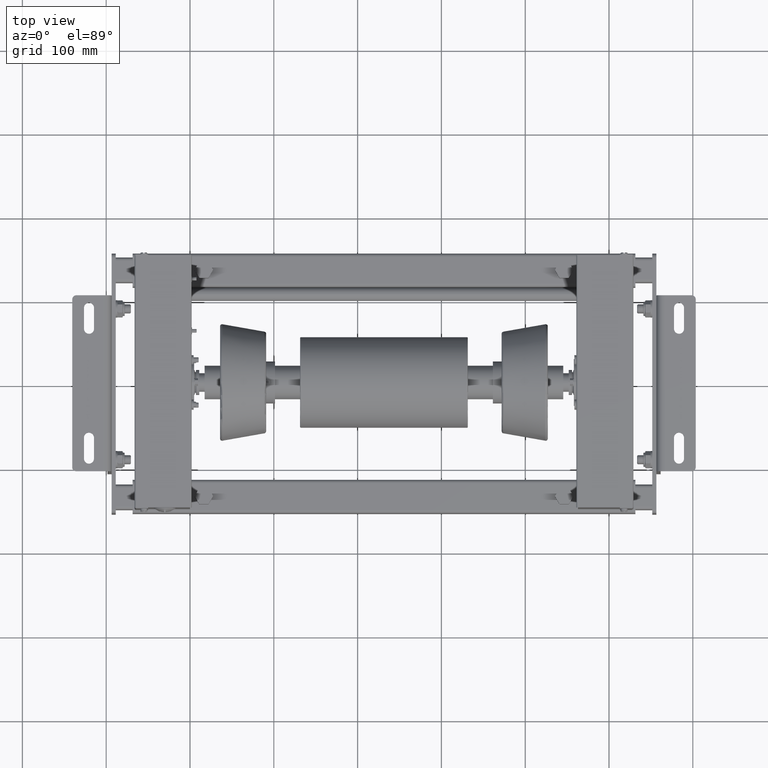
[diagram: clean part render]
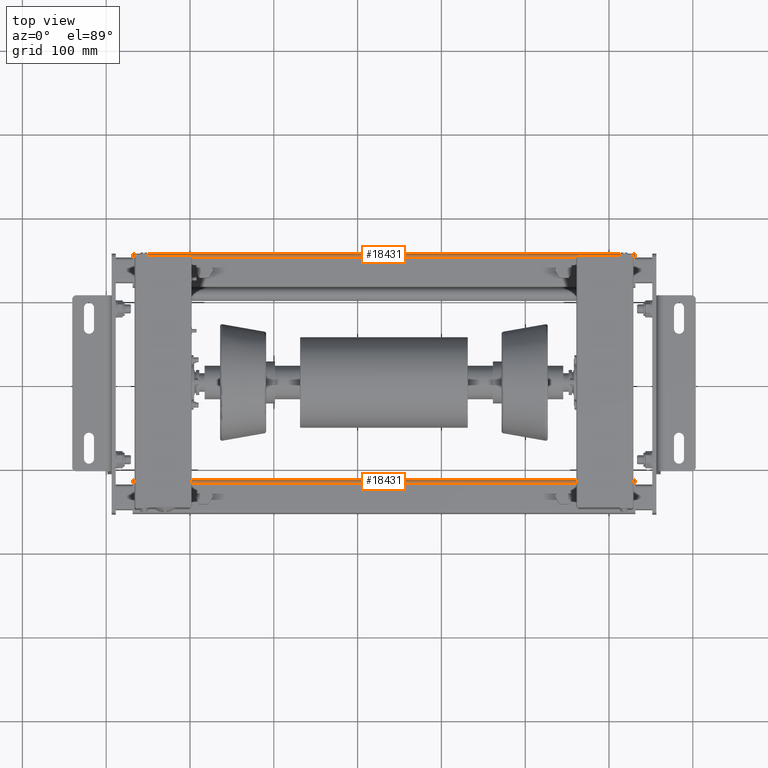
[diagram: same view with one multi-face feature highlighted, each face labeled with its STEP entity id]
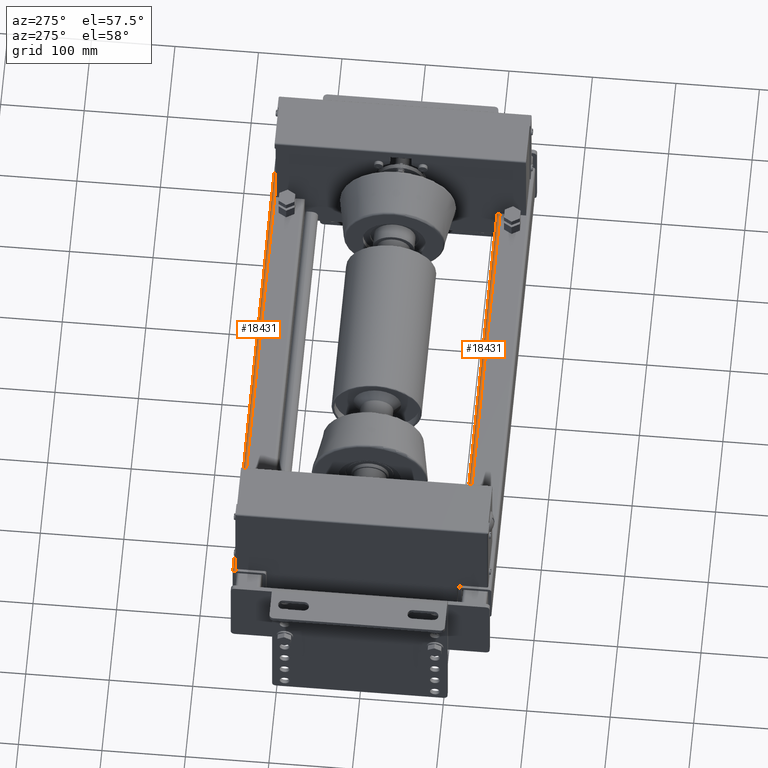
[diagram: same view with one multi-face feature highlighted, each face labeled with its STEP entity id]
A machine part, top view. The highlighted faces form ONE feature: a constant-radius fillet chain: 2 tangent blend faces with common blend radius 4 mm. The faces share edges in the B-rep.
A second angle (auxiliary view) of the same feature is appended — it is thin or edge-on in the first view.
Their STEP definitions:
[1] entity #18431 (Cylinder):
#18365=CARTESIAN_POINT('',(16.0,30.0,195.0));
#18366=VERTEX_POINT('',#18365);
#18373=CARTESIAN_POINT('',(16.0,30.0,-405.0));
#18374=VERTEX_POINT('',#18373);
#18375=CARTESIAN_POINT('',(16.0,30.0,-405.0));
#18376=DIRECTION('',(0.0,0.0,1.0));
#18377=VECTOR('',#18376,600.0);
#18378=LINE('',#18375,#18377);
#18379=EDGE_CURVE('',#18374,#18366,#18378,.T.);
#18399=CARTESIAN_POINT('',(16.0,26.0,-405.0));
#18400=DIRECTION('',(0.0,0.0,1.0));
#18401=DIRECTION('',(1.0,0.0,0.0));
#18402=AXIS2_PLACEMENT_3D('',#18399,#18400,#18401);
#18403=CYLINDRICAL_SURFACE('',#18402,4.0);
#18404=CARTESIAN_POINT('',(20.0,26.0,195.0));
#18405=VERTEX_POINT('',#18404);
#18406=CARTESIAN_POINT('',(16.0,26.0,195.0));
#18407=DIRECTION('',(0.0,0.0,-1.0));
#18408=DIRECTION('',(1.0,0.0,0.0));
#18409=AXIS2_PLACEMENT_3D('',#18406,#18407,#18408);
#18410=CIRCLE('',#18409,4.0);
#18411=EDGE_CURVE('',#18366,#18405,#18410,.T.);
#18412=ORIENTED_EDGE('',*,*,#18411,.T.);
#18413=CARTESIAN_POINT('',(20.0,26.0,-405.0));
#18414=VERTEX_POINT('',#18413);
#18415=CARTESIAN_POINT('',(20.0,26.0,-405.0));
#18416=DIRECTION('',(0.0,0.0,1.0));
#18417=VECTOR('',#18416,600.0);
#18418=LINE('',#18415,#18417);
#18419=EDGE_CURVE('',#18414,#18405,#18418,.T.);
#18420=ORIENTED_EDGE('',*,*,#18419,.F.);
#18421=CARTESIAN_POINT('',(16.0,26.0,-405.0));
#18422=DIRECTION('',(0.0,0.0,-1.0));
#18423=DIRECTION('',(1.0,0.0,0.0));
#18424=AXIS2_PLACEMENT_3D('',#18421,#18422,#18423);
#18425=CIRCLE('',#18424,4.0);
#18426=EDGE_CURVE('',#18374,#18414,#18425,.T.);
#18427=ORIENTED_EDGE('',*,*,#18426,.F.);
#18428=ORIENTED_EDGE('',*,*,#18379,.T.);
#18429=EDGE_LOOP('',(#18412,#18420,#18427,#18428));
#18430=FACE_OUTER_BOUND('',#18429,.T.);
#18431=ADVANCED_FACE('',(#18430),#18403,.T.);
[2] entity #18431 (Cylinder):
#18365=CARTESIAN_POINT('',(16.0,30.0,195.0));
#18366=VERTEX_POINT('',#18365);
#18373=CARTESIAN_POINT('',(16.0,30.0,-405.0));
#18374=VERTEX_POINT('',#18373);
#18375=CARTESIAN_POINT('',(16.0,30.0,-405.0));
#18376=DIRECTION('',(0.0,0.0,1.0));
#18377=VECTOR('',#18376,600.0);
#18378=LINE('',#18375,#18377);
#18379=EDGE_CURVE('',#18374,#18366,#18378,.T.);
#18399=CARTESIAN_POINT('',(16.0,26.0,-405.0));
#18400=DIRECTION('',(0.0,0.0,1.0));
#18401=DIRECTION('',(1.0,0.0,0.0));
#18402=AXIS2_PLACEMENT_3D('',#18399,#18400,#18401);
#18403=CYLINDRICAL_SURFACE('',#18402,4.0);
#18404=CARTESIAN_POINT('',(20.0,26.0,195.0));
#18405=VERTEX_POINT('',#18404);
#18406=CARTESIAN_POINT('',(16.0,26.0,195.0));
#18407=DIRECTION('',(0.0,0.0,-1.0));
#18408=DIRECTION('',(1.0,0.0,0.0));
#18409=AXIS2_PLACEMENT_3D('',#18406,#18407,#18408);
#18410=CIRCLE('',#18409,4.0);
#18411=EDGE_CURVE('',#18366,#18405,#18410,.T.);
#18412=ORIENTED_EDGE('',*,*,#18411,.T.);
#18413=CARTESIAN_POINT('',(20.0,26.0,-405.0));
#18414=VERTEX_POINT('',#18413);
#18415=CARTESIAN_POINT('',(20.0,26.0,-405.0));
#18416=DIRECTION('',(0.0,0.0,1.0));
#18417=VECTOR('',#18416,600.0);
#18418=LINE('',#18415,#18417);
#18419=EDGE_CURVE('',#18414,#18405,#18418,.T.);
#18420=ORIENTED_EDGE('',*,*,#18419,.F.);
#18421=CARTESIAN_POINT('',(16.0,26.0,-405.0));
#18422=DIRECTION('',(0.0,0.0,-1.0));
#18423=DIRECTION('',(1.0,0.0,0.0));
#18424=AXIS2_PLACEMENT_3D('',#18421,#18422,#18423);
#18425=CIRCLE('',#18424,4.0);
#18426=EDGE_CURVE('',#18374,#18414,#18425,.T.);
#18427=ORIENTED_EDGE('',*,*,#18426,.F.);
#18428=ORIENTED_EDGE('',*,*,#18379,.T.);
#18429=EDGE_LOOP('',(#18412,#18420,#18427,#18428));
#18430=FACE_OUTER_BOUND('',#18429,.T.);
#18431=ADVANCED_FACE('',(#18430),#18403,.T.);